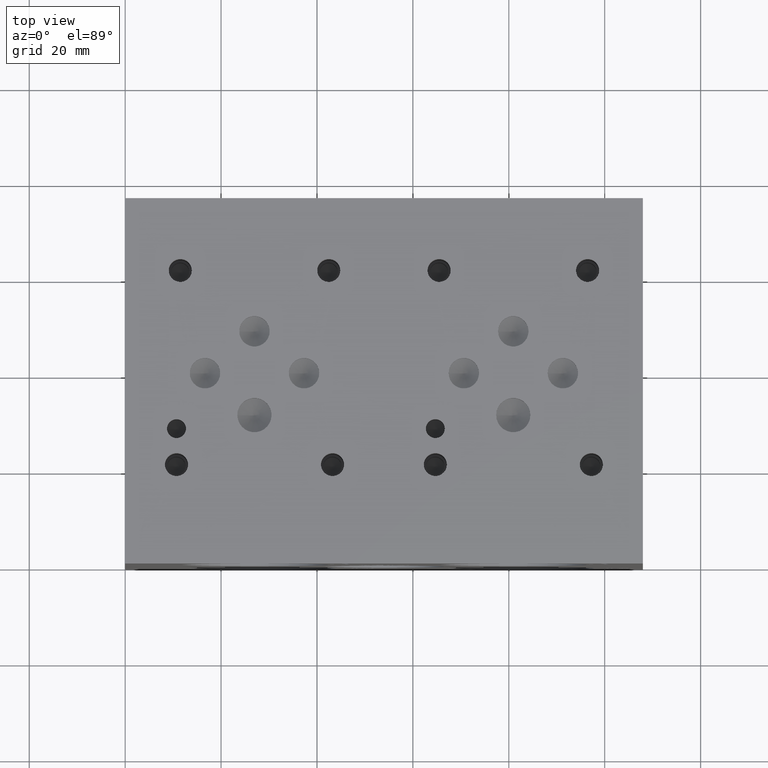
[diagram: clean part render]
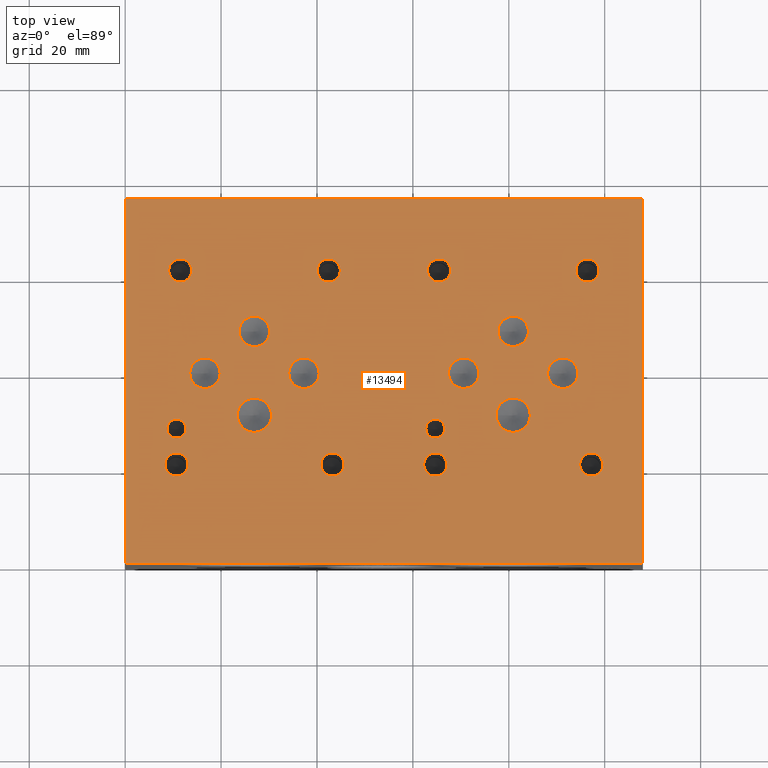
[diagram: same view with one face highlighted and labeled with its STEP entity id]
A machine part, top view. The second image highlights one B-rep face of the part: STEP entity #13494.
In plain terms, the highlighted planar face has unit normal (0, 0, 1).
Its self-contained STEP definition (entity closure, byte-faithful):
#222=CIRCLE('',#13899,3.5687);
#223=CIRCLE('',#13900,3.5687);
#226=CIRCLE('',#13905,3.5687);
#227=CIRCLE('',#13906,3.5687);
#230=CIRCLE('',#13911,3.175);
#231=CIRCLE('',#13912,3.175);
#234=CIRCLE('',#13917,3.175);
#235=CIRCLE('',#13918,3.175);
#238=CIRCLE('',#13923,3.175);
#239=CIRCLE('',#13924,3.175);
#242=CIRCLE('',#13929,3.175);
#243=CIRCLE('',#13930,3.175);
#246=CIRCLE('',#13935,3.175);
#247=CIRCLE('',#13936,3.175);
#250=CIRCLE('',#13941,3.175);
#251=CIRCLE('',#13942,3.175);
#254=CIRCLE('',#13947,1.9812);
#255=CIRCLE('',#13948,1.9812);
#258=CIRCLE('',#13953,1.9812);
#259=CIRCLE('',#13954,1.9812);
#265=CIRCLE('',#13963,2.413);
#266=CIRCLE('',#13964,2.413);
#272=CIRCLE('',#13974,2.413);
#273=CIRCLE('',#13975,2.413);
#279=CIRCLE('',#13985,2.413);
#280=CIRCLE('',#13986,2.413);
#286=CIRCLE('',#13996,2.413);
#287=CIRCLE('',#13997,2.413);
#293=CIRCLE('',#14007,2.413);
#294=CIRCLE('',#14008,2.413);
#300=CIRCLE('',#14018,2.413);
#301=CIRCLE('',#14019,2.413);
#307=CIRCLE('',#14029,2.413);
#308=CIRCLE('',#14030,2.413);
#314=CIRCLE('',#14040,2.413);
#315=CIRCLE('',#14041,2.413);
#584=FACE_BOUND('',#2651,.T.);
#585=FACE_BOUND('',#2652,.T.);
#586=FACE_BOUND('',#2653,.T.);
#587=FACE_BOUND('',#2654,.T.);
#588=FACE_BOUND('',#2655,.T.);
#589=FACE_BOUND('',#2656,.T.);
#590=FACE_BOUND('',#2657,.T.);
#591=FACE_BOUND('',#2658,.T.);
#592=FACE_BOUND('',#2659,.T.);
#593=FACE_BOUND('',#2660,.T.);
#594=FACE_BOUND('',#2661,.T.);
#595=FACE_BOUND('',#2662,.T.);
#596=FACE_BOUND('',#2663,.T.);
#597=FACE_BOUND('',#2664,.T.);
#598=FACE_BOUND('',#2665,.T.);
#599=FACE_BOUND('',#2666,.T.);
#600=FACE_BOUND('',#2667,.T.);
#601=FACE_BOUND('',#2668,.T.);
#1860=FACE_OUTER_BOUND('',#2650,.T.);
#2650=EDGE_LOOP('',(#11902,#11903,#11904,#11905));
#2651=EDGE_LOOP('',(#11906,#11907));
#2652=EDGE_LOOP('',(#11908,#11909));
#2653=EDGE_LOOP('',(#11910,#11911));
#2654=EDGE_LOOP('',(#11912,#11913));
#2655=EDGE_LOOP('',(#11914,#11915));
#2656=EDGE_LOOP('',(#11916,#11917));
#2657=EDGE_LOOP('',(#11918,#11919));
#2658=EDGE_LOOP('',(#11920,#11921));
#2659=EDGE_LOOP('',(#11922,#11923));
#2660=EDGE_LOOP('',(#11924,#11925));
#2661=EDGE_LOOP('',(#11926,#11927));
#2662=EDGE_LOOP('',(#11928,#11929));
#2663=EDGE_LOOP('',(#11930,#11931));
#2664=EDGE_LOOP('',(#11932,#11933));
#2665=EDGE_LOOP('',(#11934,#11935));
#2666=EDGE_LOOP('',(#11936,#11937));
#2667=EDGE_LOOP('',(#11938,#11939));
#2668=EDGE_LOOP('',(#11940,#11941));
#2973=LINE('',#19879,#4151);
#3422=LINE('',#21172,#4600);
#3611=LINE('',#22191,#4789);
#3669=LINE('',#22460,#4847);
#4151=VECTOR('',#14796,10.);
#4600=VECTOR('',#15565,10.);
#4789=VECTOR('',#15898,10.);
#4847=VECTOR('',#16010,10.);
#5390=VERTEX_POINT('',#19876);
#5391=VERTEX_POINT('',#19878);
#5722=VERTEX_POINT('',#21169);
#5723=VERTEX_POINT('',#21171);
#6014=VERTEX_POINT('',#22607);
#6015=VERTEX_POINT('',#22608);
#6019=VERTEX_POINT('',#22620);
#6020=VERTEX_POINT('',#22621);
#6024=VERTEX_POINT('',#22633);
#6025=VERTEX_POINT('',#22634);
#6029=VERTEX_POINT('',#22646);
#6030=VERTEX_POINT('',#22647);
#6034=VERTEX_POINT('',#22659);
#6035=VERTEX_POINT('',#22660);
#6039=VERTEX_POINT('',#22672);
#6040=VERTEX_POINT('',#22673);
#6044=VERTEX_POINT('',#22685);
#6045=VERTEX_POINT('',#22686);
#6049=VERTEX_POINT('',#22698);
#6050=VERTEX_POINT('',#22699);
#6054=VERTEX_POINT('',#22711);
#6055=VERTEX_POINT('',#22712);
#6059=VERTEX_POINT('',#22724);
#6060=VERTEX_POINT('',#22725);
#6067=VERTEX_POINT('',#22744);
#6068=VERTEX_POINT('',#22745);
#6075=VERTEX_POINT('',#22766);
#6076=VERTEX_POINT('',#22767);
#6083=VERTEX_POINT('',#22788);
#6084=VERTEX_POINT('',#22789);
#6091=VERTEX_POINT('',#22810);
#6092=VERTEX_POINT('',#22811);
#6099=VERTEX_POINT('',#22832);
#6100=VERTEX_POINT('',#22833);
#6107=VERTEX_POINT('',#22854);
#6108=VERTEX_POINT('',#22855);
#6115=VERTEX_POINT('',#22876);
#6116=VERTEX_POINT('',#22877);
#6123=VERTEX_POINT('',#22898);
#6124=VERTEX_POINT('',#22899);
#6860=EDGE_CURVE('',#5391,#5390,#2973,.T.);
#7355=EDGE_CURVE('',#5723,#5722,#3422,.T.);
#7626=EDGE_CURVE('',#5722,#5391,#3611,.T.);
#7708=EDGE_CURVE('',#5390,#5723,#3669,.T.);
#7779=EDGE_CURVE('',#6014,#6015,#222,.T.);
#7780=EDGE_CURVE('',#6015,#6014,#223,.T.);
#7785=EDGE_CURVE('',#6019,#6020,#226,.T.);
#7786=EDGE_CURVE('',#6020,#6019,#227,.T.);
#7791=EDGE_CURVE('',#6024,#6025,#230,.T.);
#7792=EDGE_CURVE('',#6025,#6024,#231,.T.);
#7797=EDGE_CURVE('',#6029,#6030,#234,.T.);
#7798=EDGE_CURVE('',#6030,#6029,#235,.T.);
#7803=EDGE_CURVE('',#6034,#6035,#238,.T.);
#7804=EDGE_CURVE('',#6035,#6034,#239,.T.);
#7809=EDGE_CURVE('',#6039,#6040,#242,.T.);
#7810=EDGE_CURVE('',#6040,#6039,#243,.T.);
#7815=EDGE_CURVE('',#6044,#6045,#246,.T.);
#7816=EDGE_CURVE('',#6045,#6044,#247,.T.);
#7821=EDGE_CURVE('',#6049,#6050,#250,.T.);
#7822=EDGE_CURVE('',#6050,#6049,#251,.T.);
#7827=EDGE_CURVE('',#6054,#6055,#254,.T.);
#7828=EDGE_CURVE('',#6055,#6054,#255,.T.);
#7833=EDGE_CURVE('',#6059,#6060,#258,.T.);
#7834=EDGE_CURVE('',#6060,#6059,#259,.T.);
#7842=EDGE_CURVE('',#6067,#6068,#265,.T.);
#7843=EDGE_CURVE('',#6068,#6067,#266,.T.);
#7852=EDGE_CURVE('',#6075,#6076,#272,.T.);
#7853=EDGE_CURVE('',#6076,#6075,#273,.T.);
#7862=EDGE_CURVE('',#6083,#6084,#279,.T.);
#7863=EDGE_CURVE('',#6084,#6083,#280,.T.);
#7872=EDGE_CURVE('',#6091,#6092,#286,.T.);
#7873=EDGE_CURVE('',#6092,#6091,#287,.T.);
#7882=EDGE_CURVE('',#6099,#6100,#293,.T.);
#7883=EDGE_CURVE('',#6100,#6099,#294,.T.);
#7892=EDGE_CURVE('',#6107,#6108,#300,.T.);
#7893=EDGE_CURVE('',#6108,#6107,#301,.T.);
#7902=EDGE_CURVE('',#6115,#6116,#307,.T.);
#7903=EDGE_CURVE('',#6116,#6115,#308,.T.);
#7912=EDGE_CURVE('',#6123,#6124,#314,.T.);
#7913=EDGE_CURVE('',#6124,#6123,#315,.T.);
#11902=ORIENTED_EDGE('',*,*,#7355,.T.);
#11903=ORIENTED_EDGE('',*,*,#7626,.T.);
#11904=ORIENTED_EDGE('',*,*,#6860,.T.);
#11905=ORIENTED_EDGE('',*,*,#7708,.T.);
#11906=ORIENTED_EDGE('',*,*,#7779,.T.);
#11907=ORIENTED_EDGE('',*,*,#7780,.T.);
#11908=ORIENTED_EDGE('',*,*,#7785,.T.);
#11909=ORIENTED_EDGE('',*,*,#7786,.T.);
#11910=ORIENTED_EDGE('',*,*,#7791,.T.);
#11911=ORIENTED_EDGE('',*,*,#7792,.T.);
#11912=ORIENTED_EDGE('',*,*,#7797,.T.);
#11913=ORIENTED_EDGE('',*,*,#7798,.T.);
#11914=ORIENTED_EDGE('',*,*,#7803,.T.);
#11915=ORIENTED_EDGE('',*,*,#7804,.T.);
#11916=ORIENTED_EDGE('',*,*,#7809,.T.);
#11917=ORIENTED_EDGE('',*,*,#7810,.T.);
#11918=ORIENTED_EDGE('',*,*,#7815,.T.);
#11919=ORIENTED_EDGE('',*,*,#7816,.T.);
#11920=ORIENTED_EDGE('',*,*,#7821,.T.);
#11921=ORIENTED_EDGE('',*,*,#7822,.T.);
#11922=ORIENTED_EDGE('',*,*,#7827,.T.);
#11923=ORIENTED_EDGE('',*,*,#7828,.T.);
#11924=ORIENTED_EDGE('',*,*,#7833,.T.);
#11925=ORIENTED_EDGE('',*,*,#7834,.T.);
#11926=ORIENTED_EDGE('',*,*,#7842,.T.);
#11927=ORIENTED_EDGE('',*,*,#7843,.T.);
#11928=ORIENTED_EDGE('',*,*,#7852,.T.);
#11929=ORIENTED_EDGE('',*,*,#7853,.T.);
#11930=ORIENTED_EDGE('',*,*,#7862,.T.);
#11931=ORIENTED_EDGE('',*,*,#7863,.T.);
#11932=ORIENTED_EDGE('',*,*,#7872,.T.);
#11933=ORIENTED_EDGE('',*,*,#7873,.T.);
#11934=ORIENTED_EDGE('',*,*,#7882,.T.);
#11935=ORIENTED_EDGE('',*,*,#7883,.T.);
#11936=ORIENTED_EDGE('',*,*,#7892,.T.);
#11937=ORIENTED_EDGE('',*,*,#7893,.T.);
#11938=ORIENTED_EDGE('',*,*,#7902,.T.);
#11939=ORIENTED_EDGE('',*,*,#7903,.T.);
#11940=ORIENTED_EDGE('',*,*,#7912,.T.);
#11941=ORIENTED_EDGE('',*,*,#7913,.T.);
#12302=PLANE('',#14345);
#13494=ADVANCED_FACE('',(#1860,#584,#585,#586,#587,#588,#589,#590,#591,
#592,#593,#594,#595,#596,#597,#598,#599,#600,#601),#12302,.T.);
#13899=AXIS2_PLACEMENT_3D('',#22609,#16163,#16164);
#13900=AXIS2_PLACEMENT_3D('',#22610,#16165,#16166);
#13905=AXIS2_PLACEMENT_3D('',#22622,#16177,#16178);
#13906=AXIS2_PLACEMENT_3D('',#22623,#16179,#16180);
#13911=AXIS2_PLACEMENT_3D('',#22635,#16191,#16192);
#13912=AXIS2_PLACEMENT_3D('',#22636,#16193,#16194);
#13917=AXIS2_PLACEMENT_3D('',#22648,#16205,#16206);
#13918=AXIS2_PLACEMENT_3D('',#22649,#16207,#16208);
#13923=AXIS2_PLACEMENT_3D('',#22661,#16219,#16220);
#13924=AXIS2_PLACEMENT_3D('',#22662,#16221,#16222);
#13929=AXIS2_PLACEMENT_3D('',#22674,#16233,#16234);
#13930=AXIS2_PLACEMENT_3D('',#22675,#16235,#16236);
#13935=AXIS2_PLACEMENT_3D('',#22687,#16247,#16248);
#13936=AXIS2_PLACEMENT_3D('',#22688,#16249,#16250);
#13941=AXIS2_PLACEMENT_3D('',#22700,#16261,#16262);
#13942=AXIS2_PLACEMENT_3D('',#22701,#16263,#16264);
#13947=AXIS2_PLACEMENT_3D('',#22713,#16275,#16276);
#13948=AXIS2_PLACEMENT_3D('',#22714,#16277,#16278);
#13953=AXIS2_PLACEMENT_3D('',#22726,#16289,#16290);
#13954=AXIS2_PLACEMENT_3D('',#22727,#16291,#16292);
#13963=AXIS2_PLACEMENT_3D('',#22746,#16311,#16312);
#13964=AXIS2_PLACEMENT_3D('',#22747,#16313,#16314);
#13974=AXIS2_PLACEMENT_3D('',#22768,#16336,#16337);
#13975=AXIS2_PLACEMENT_3D('',#22769,#16338,#16339);
#13985=AXIS2_PLACEMENT_3D('',#22790,#16361,#16362);
#13986=AXIS2_PLACEMENT_3D('',#22791,#16363,#16364);
#13996=AXIS2_PLACEMENT_3D('',#22812,#16386,#16387);
#13997=AXIS2_PLACEMENT_3D('',#22813,#16388,#16389);
#14007=AXIS2_PLACEMENT_3D('',#22834,#16411,#16412);
#14008=AXIS2_PLACEMENT_3D('',#22835,#16413,#16414);
#14018=AXIS2_PLACEMENT_3D('',#22856,#16436,#16437);
#14019=AXIS2_PLACEMENT_3D('',#22857,#16438,#16439);
#14029=AXIS2_PLACEMENT_3D('',#22878,#16461,#16462);
#14030=AXIS2_PLACEMENT_3D('',#22879,#16463,#16464);
#14040=AXIS2_PLACEMENT_3D('',#22900,#16486,#16487);
#14041=AXIS2_PLACEMENT_3D('',#22901,#16488,#16489);
#14345=AXIS2_PLACEMENT_3D('',#23496,#17197,#17198);
#14796=DIRECTION('',(-1.,0.,0.));
#15565=DIRECTION('',(1.,0.,0.));
#15898=DIRECTION('',(0.,1.,0.));
#16010=DIRECTION('',(0.,-1.,0.));
#16163=DIRECTION('center_axis',(0.,0.,-1.));
#16164=DIRECTION('ref_axis',(1.,0.,0.));
#16165=DIRECTION('center_axis',(0.,0.,-1.));
#16166=DIRECTION('ref_axis',(1.,0.,0.));
#16177=DIRECTION('center_axis',(0.,0.,-1.));
#16178=DIRECTION('ref_axis',(1.,0.,0.));
#16179=DIRECTION('center_axis',(0.,0.,-1.));
#16180=DIRECTION('ref_axis',(1.,0.,0.));
#16191=DIRECTION('center_axis',(0.,0.,-1.));
#16192=DIRECTION('ref_axis',(1.,0.,0.));
#16193=DIRECTION('center_axis',(0.,0.,-1.));
#16194=DIRECTION('ref_axis',(1.,0.,0.));
#16205=DIRECTION('center_axis',(0.,0.,-1.));
#16206=DIRECTION('ref_axis',(1.,0.,0.));
#16207=DIRECTION('center_axis',(0.,0.,-1.));
#16208=DIRECTION('ref_axis',(1.,0.,0.));
#16219=DIRECTION('center_axis',(0.,0.,-1.));
#16220=DIRECTION('ref_axis',(1.,0.,0.));
#16221=DIRECTION('center_axis',(0.,0.,-1.));
#16222=DIRECTION('ref_axis',(1.,0.,0.));
#16233=DIRECTION('center_axis',(0.,0.,-1.));
#16234=DIRECTION('ref_axis',(1.,0.,0.));
#16235=DIRECTION('center_axis',(0.,0.,-1.));
#16236=DIRECTION('ref_axis',(1.,0.,0.));
#16247=DIRECTION('center_axis',(0.,0.,-1.));
#16248=DIRECTION('ref_axis',(1.,0.,0.));
#16249=DIRECTION('center_axis',(0.,0.,-1.));
#16250=DIRECTION('ref_axis',(1.,0.,0.));
#16261=DIRECTION('center_axis',(0.,0.,-1.));
#16262=DIRECTION('ref_axis',(1.,0.,0.));
#16263=DIRECTION('center_axis',(0.,0.,-1.));
#16264=DIRECTION('ref_axis',(1.,0.,0.));
#16275=DIRECTION('center_axis',(0.,0.,-1.));
#16276=DIRECTION('ref_axis',(1.,0.,0.));
#16277=DIRECTION('center_axis',(0.,0.,-1.));
#16278=DIRECTION('ref_axis',(1.,0.,0.));
#16289=DIRECTION('center_axis',(0.,0.,-1.));
#16290=DIRECTION('ref_axis',(1.,0.,0.));
#16291=DIRECTION('center_axis',(0.,0.,-1.));
#16292=DIRECTION('ref_axis',(1.,0.,0.));
#16311=DIRECTION('center_axis',(0.,0.,-1.));
#16312=DIRECTION('ref_axis',(1.,0.,0.));
#16313=DIRECTION('center_axis',(0.,0.,-1.));
#16314=DIRECTION('ref_axis',(1.,0.,0.));
#16336=DIRECTION('center_axis',(0.,0.,-1.));
#16337=DIRECTION('ref_axis',(1.,0.,0.));
#16338=DIRECTION('center_axis',(0.,0.,-1.));
#16339=DIRECTION('ref_axis',(1.,0.,0.));
#16361=DIRECTION('center_axis',(0.,0.,-1.));
#16362=DIRECTION('ref_axis',(1.,0.,0.));
#16363=DIRECTION('center_axis',(0.,0.,-1.));
#16364=DIRECTION('ref_axis',(1.,0.,0.));
#16386=DIRECTION('center_axis',(0.,0.,-1.));
#16387=DIRECTION('ref_axis',(1.,0.,0.));
#16388=DIRECTION('center_axis',(0.,0.,-1.));
#16389=DIRECTION('ref_axis',(1.,0.,0.));
#16411=DIRECTION('center_axis',(0.,0.,-1.));
#16412=DIRECTION('ref_axis',(1.,0.,0.));
#16413=DIRECTION('center_axis',(0.,0.,-1.));
#16414=DIRECTION('ref_axis',(1.,0.,0.));
#16436=DIRECTION('center_axis',(0.,0.,-1.));
#16437=DIRECTION('ref_axis',(1.,0.,0.));
#16438=DIRECTION('center_axis',(0.,0.,-1.));
#16439=DIRECTION('ref_axis',(1.,0.,0.));
#16461=DIRECTION('center_axis',(0.,0.,-1.));
#16462=DIRECTION('ref_axis',(1.,0.,0.));
#16463=DIRECTION('center_axis',(0.,0.,-1.));
#16464=DIRECTION('ref_axis',(1.,0.,0.));
#16486=DIRECTION('center_axis',(0.,0.,-1.));
#16487=DIRECTION('ref_axis',(1.,0.,0.));
#16488=DIRECTION('center_axis',(0.,0.,-1.));
#16489=DIRECTION('ref_axis',(1.,0.,0.));
#17197=DIRECTION('center_axis',(0.,0.,1.));
#17198=DIRECTION('ref_axis',(1.,0.,0.));
#19876=CARTESIAN_POINT('',(0.,76.2,76.2));
#19878=CARTESIAN_POINT('',(107.95,76.2,76.2));
#19879=CARTESIAN_POINT('',(107.95,76.2,76.2));
#21169=CARTESIAN_POINT('',(107.95,0.,76.2));
#21171=CARTESIAN_POINT('',(0.,0.,76.2));
#21172=CARTESIAN_POINT('',(0.,0.,76.2));
#22191=CARTESIAN_POINT('',(107.95,0.,76.2));
#22460=CARTESIAN_POINT('',(0.,76.2,76.2));
#22607=CARTESIAN_POINT('',(30.5181,30.9372,76.2));
#22608=CARTESIAN_POINT('',(23.3807,30.9372,76.2));
#22609=CARTESIAN_POINT('Origin',(26.9494,30.9372,76.2));
#22610=CARTESIAN_POINT('Origin',(26.9494,30.9372,76.2));
#22620=CARTESIAN_POINT('',(84.4931,30.9372,76.2));
#22621=CARTESIAN_POINT('',(77.3557,30.9372,76.2));
#22622=CARTESIAN_POINT('Origin',(80.9244,30.9372,76.2));
#22623=CARTESIAN_POINT('Origin',(80.9244,30.9372,76.2));
#22633=CARTESIAN_POINT('',(94.4372,39.6748,76.2));
#22634=CARTESIAN_POINT('',(88.0872,39.6748,76.2));
#22635=CARTESIAN_POINT('Origin',(91.2622,39.6748,76.2));
#22636=CARTESIAN_POINT('Origin',(91.2622,39.6748,76.2));
#22646=CARTESIAN_POINT('',(30.1244,48.4124,76.2));
#22647=CARTESIAN_POINT('',(23.7744,48.4124,76.2));
#22648=CARTESIAN_POINT('Origin',(26.9494,48.4124,76.2));
#22649=CARTESIAN_POINT('Origin',(26.9494,48.4124,76.2));
#22659=CARTESIAN_POINT('',(19.812,39.6748,76.2));
#22660=CARTESIAN_POINT('',(13.462,39.6748,76.2));
#22661=CARTESIAN_POINT('Origin',(16.637,39.6748,76.2));
#22662=CARTESIAN_POINT('Origin',(16.637,39.6748,76.2));
#22672=CARTESIAN_POINT('',(40.4622,39.6748,76.2));
#22673=CARTESIAN_POINT('',(34.1122,39.6748,76.2));
#22674=CARTESIAN_POINT('Origin',(37.2872,39.6748,76.2));
#22675=CARTESIAN_POINT('Origin',(37.2872,39.6748,76.2));
#22685=CARTESIAN_POINT('',(73.787,39.6748,76.2));
#22686=CARTESIAN_POINT('',(67.437,39.6748,76.2));
#22687=CARTESIAN_POINT('Origin',(70.612,39.6748,76.2));
#22688=CARTESIAN_POINT('Origin',(70.612,39.6748,76.2));
#22698=CARTESIAN_POINT('',(84.0994,48.4124,76.2));
#22699=CARTESIAN_POINT('',(77.7494,48.4124,76.2));
#22700=CARTESIAN_POINT('Origin',(80.9244,48.4124,76.2));
#22701=CARTESIAN_POINT('Origin',(80.9244,48.4124,76.2));
#22711=CARTESIAN_POINT('',(12.6746,28.1178,76.2));
#22712=CARTESIAN_POINT('',(8.7122,28.1178,76.2));
#22713=CARTESIAN_POINT('Origin',(10.6934,28.1178,76.2));
#22714=CARTESIAN_POINT('Origin',(10.6934,28.1178,76.2));
#22724=CARTESIAN_POINT('',(66.6496,28.1178,76.2));
#22725=CARTESIAN_POINT('',(62.6872,28.1178,76.2));
#22726=CARTESIAN_POINT('Origin',(64.6684,28.1178,76.2));
#22727=CARTESIAN_POINT('Origin',(64.6684,28.1178,76.2));
#22744=CARTESIAN_POINT('',(99.6188,20.6248,76.2));
#22745=CARTESIAN_POINT('',(94.7928,20.6248,76.2));
#22746=CARTESIAN_POINT('Origin',(97.2058,20.6248,76.2));
#22747=CARTESIAN_POINT('Origin',(97.2058,20.6248,76.2));
#22766=CARTESIAN_POINT('',(67.8688,61.1124,76.2));
#22767=CARTESIAN_POINT('',(63.0428,61.1124,76.2));
#22768=CARTESIAN_POINT('Origin',(65.4558,61.1124,76.2));
#22769=CARTESIAN_POINT('Origin',(65.4558,61.1124,76.2));
#22788=CARTESIAN_POINT('',(45.6438,20.6248,76.2));
#22789=CARTESIAN_POINT('',(40.8178,20.6248,76.2));
#22790=CARTESIAN_POINT('Origin',(43.2308,20.6248,76.2));
#22791=CARTESIAN_POINT('Origin',(43.2308,20.6248,76.2));
#22810=CARTESIAN_POINT('',(13.8938,61.1124,76.2));
#22811=CARTESIAN_POINT('',(9.0678,61.1124,76.2));
#22812=CARTESIAN_POINT('Origin',(11.4808,61.1124,76.2));
#22813=CARTESIAN_POINT('Origin',(11.4808,61.1124,76.2));
#22832=CARTESIAN_POINT('',(44.8564,61.1124,76.2));
#22833=CARTESIAN_POINT('',(40.0304,61.1124,76.2));
#22834=CARTESIAN_POINT('Origin',(42.4434,61.1124,76.2));
#22835=CARTESIAN_POINT('Origin',(42.4434,61.1124,76.2));
#22854=CARTESIAN_POINT('',(13.1064,20.6248,76.2));
#22855=CARTESIAN_POINT('',(8.2804,20.6248,76.2));
#22856=CARTESIAN_POINT('Origin',(10.6934,20.6248,76.2));
#22857=CARTESIAN_POINT('Origin',(10.6934,20.6248,76.2));
#22876=CARTESIAN_POINT('',(98.8314,61.1124,76.2));
#22877=CARTESIAN_POINT('',(94.0054,61.1124,76.2));
#22878=CARTESIAN_POINT('Origin',(96.4184,61.1124,76.2));
#22879=CARTESIAN_POINT('Origin',(96.4184,61.1124,76.2));
#22898=CARTESIAN_POINT('',(67.0814,20.6248,76.2));
#22899=CARTESIAN_POINT('',(62.2554,20.6248,76.2));
#22900=CARTESIAN_POINT('Origin',(64.6684,20.6248,76.2));
#22901=CARTESIAN_POINT('Origin',(64.6684,20.6248,76.2));
#23496=CARTESIAN_POINT('Origin',(53.975,38.1,76.2));